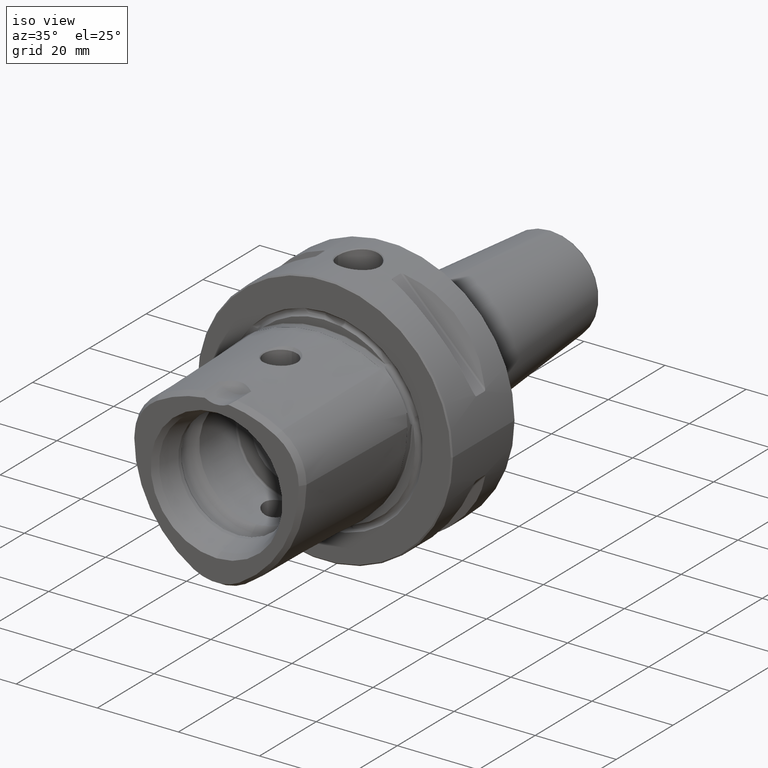
[diagram: clean part render]
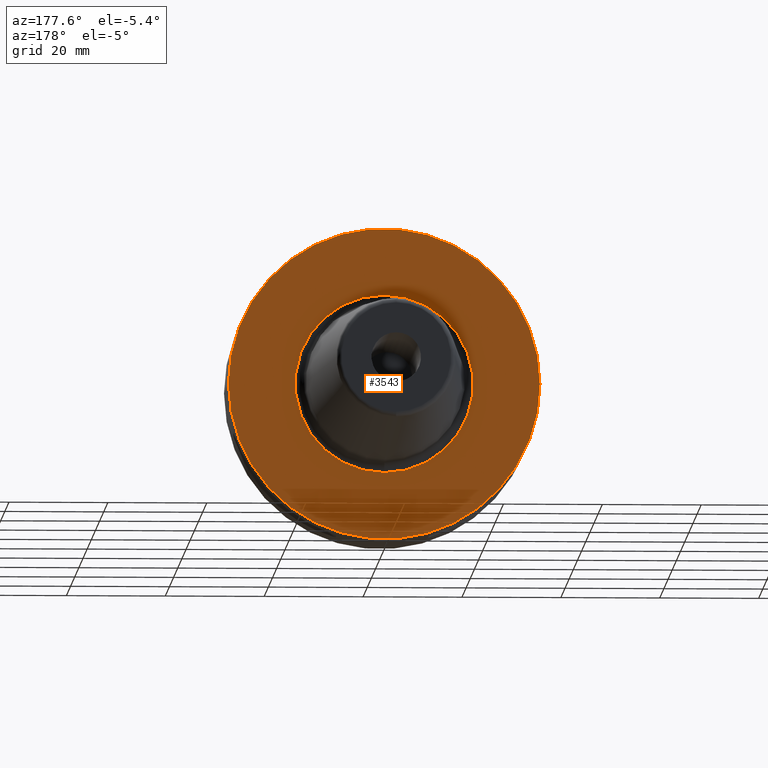
[diagram: tour spotlight — one face highlighted and labeled with its STEP entity id]
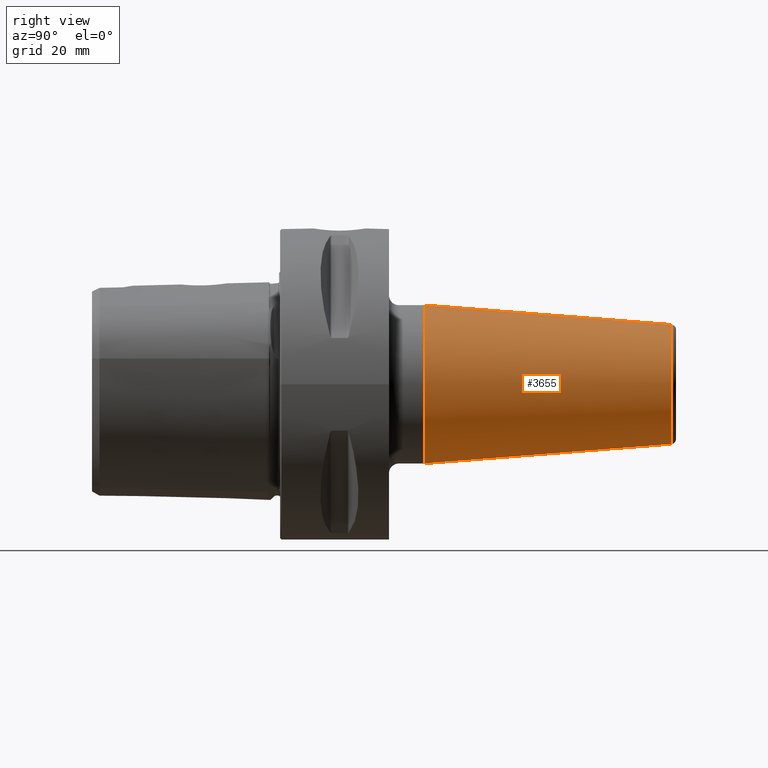
[diagram: tour spotlight — one face highlighted and labeled with its STEP entity id]
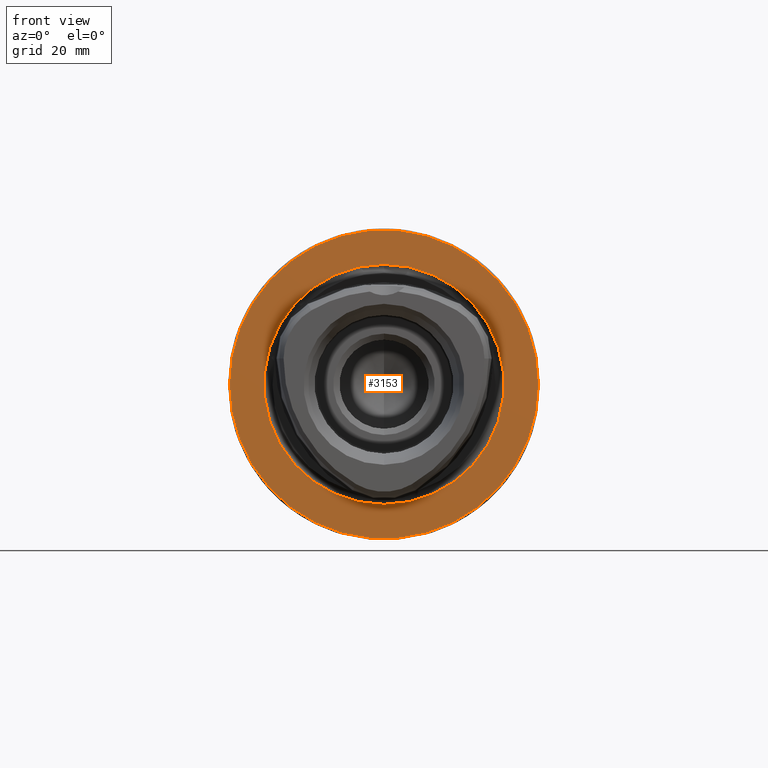
[diagram: tour spotlight — one face highlighted and labeled with its STEP entity id]
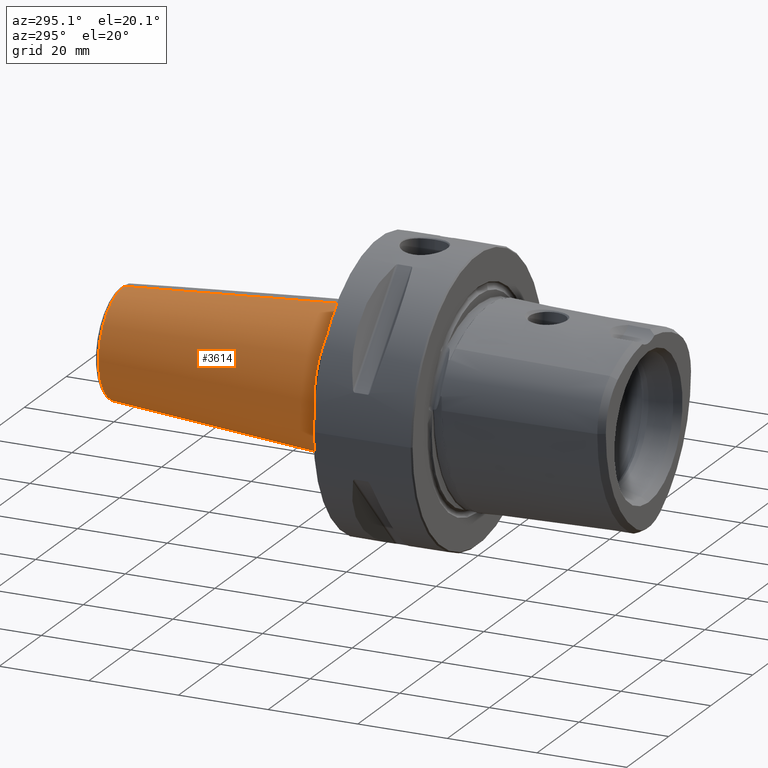
[diagram: tour spotlight — one face highlighted and labeled with its STEP entity id]
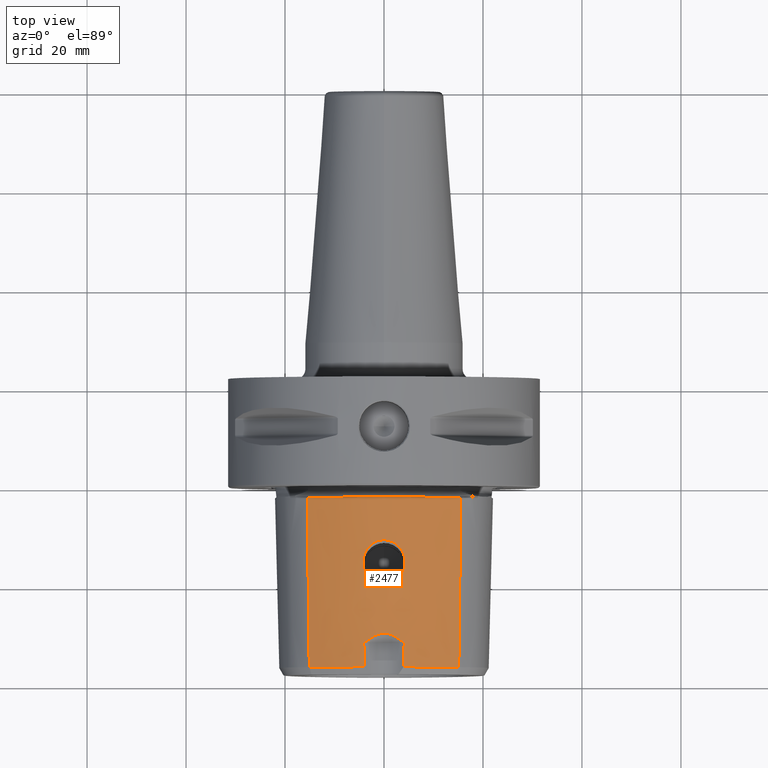
[diagram: tour spotlight — one face highlighted and labeled with its STEP entity id]
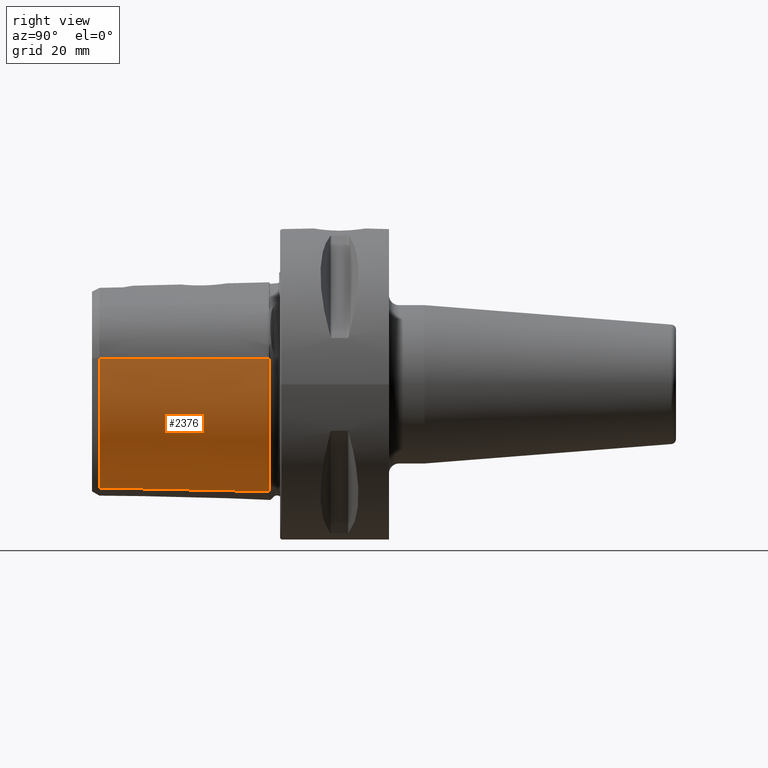
[diagram: tour spotlight — one face highlighted and labeled with its STEP entity id]
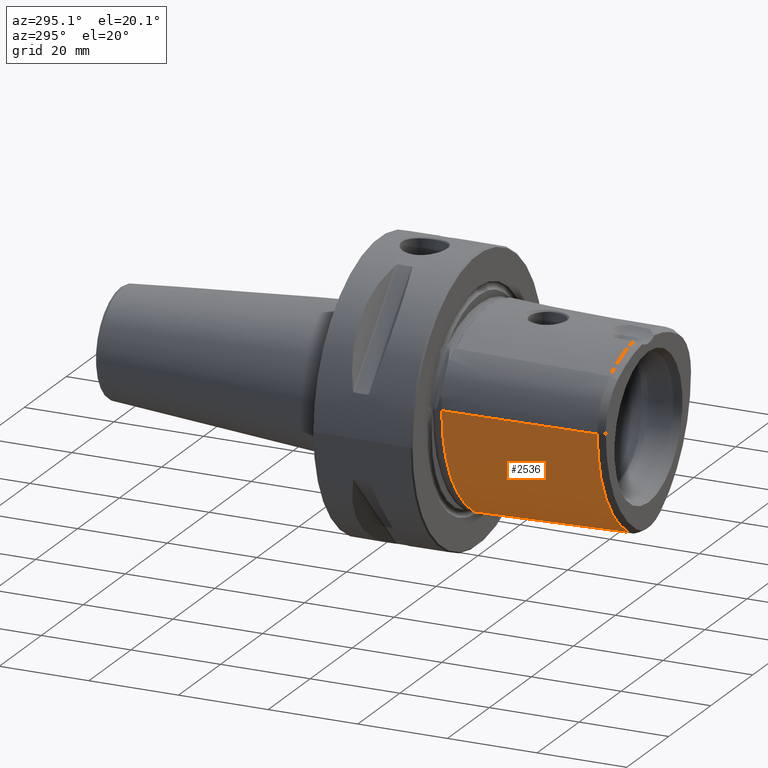
[diagram: tour spotlight — one face highlighted and labeled with its STEP entity id]
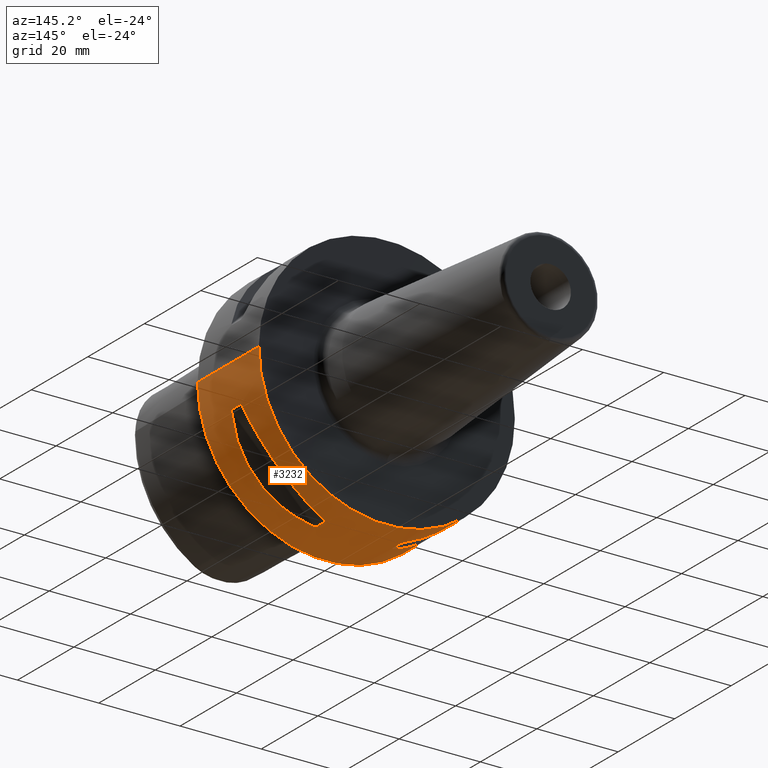
[diagram: tour spotlight — one face highlighted and labeled with its STEP entity id]
A machine part: a face-by-face anatomy tour. The part has 120 B-rep faces; the first image is the clean iso view, then the 8 largest visible faces are spotlighted one at a time (largest first), each with its STEP entity span.

Face 1 — auxiliary view, entity #3543. In plain terms, the highlighted planar face has unit normal (0, -1, 0).
Definition (entity closure, byte-faithful):
#1258=CARTESIAN_POINT('',(0.E0,2.2E1,0.E0));
#1259=DIRECTION('',(0.E0,-1.E0,0.E0));
#1260=DIRECTION('',(-1.E0,0.E0,0.E0));
#1261=AXIS2_PLACEMENT_3D('',#1258,#1259,#1260);
#1432=CARTESIAN_POINT('',(0.E0,2.2E1,0.E0));
#1433=DIRECTION('',(0.E0,1.E0,0.E0));
#1434=DIRECTION('',(-1.E0,0.E0,0.E0));
#1435=AXIS2_PLACEMENT_3D('',#1432,#1433,#1434);
#1589=CARTESIAN_POINT('',(0.E0,2.2E1,0.E0));
#1590=DIRECTION('',(0.E0,1.E0,0.E0));
#1591=DIRECTION('',(0.E0,0.E0,-1.E0));
#1592=AXIS2_PLACEMENT_3D('',#1589,#1590,#1591);
#1594=CARTESIAN_POINT('',(0.E0,2.2E1,0.E0));
#1595=DIRECTION('',(0.E0,1.E0,0.E0));
#1596=DIRECTION('',(0.E0,0.E0,1.E0));
#1597=AXIS2_PLACEMENT_3D('',#1594,#1595,#1596);
#1826=CARTESIAN_POINT('',(-3.15E1,2.2E1,0.E0));
#1827=CARTESIAN_POINT('',(3.15E1,2.2E1,0.E0));
#1828=VERTEX_POINT('',#1826);
#1829=VERTEX_POINT('',#1827);
#2102=CARTESIAN_POINT('',(0.E0,2.2E1,-1.8E1));
#2103=CARTESIAN_POINT('',(0.E0,2.2E1,1.8E1));
#2104=VERTEX_POINT('',#2102);
#2105=VERTEX_POINT('',#2103);
#3528=CARTESIAN_POINT('',(0.E0,2.2E1,0.E0));
#3529=DIRECTION('',(0.E0,-1.E0,0.E0));
#3530=DIRECTION('',(-1.E0,0.E0,0.E0));
#3531=AXIS2_PLACEMENT_3D('',#3528,#3529,#3530);
#3532=PLANE('',#3531);
#3533=ORIENTED_EDGE('',*,*,#3360,.F.);
#3534=ORIENTED_EDGE('',*,*,#3190,.T.);
#3535=EDGE_LOOP('',(#3533,#3534));
#3536=FACE_OUTER_BOUND('',#3535,.F.);
#3538=ORIENTED_EDGE('',*,*,#3537,.T.);
#3540=ORIENTED_EDGE('',*,*,#3539,.T.);
#3541=EDGE_LOOP('',(#3538,#3540));
#3542=FACE_BOUND('',#3541,.F.);
#3543=ADVANCED_FACE('',(#3536,#3542),#3532,.F.);
#1262=CIRCLE('',#1261,3.15E1);
#1436=CIRCLE('',#1435,3.15E1);
#1593=CIRCLE('',#1592,1.8E1);
#1598=CIRCLE('',#1597,1.8E1);
#3190=EDGE_CURVE('',#1828,#1829,#1262,.T.);
#3360=EDGE_CURVE('',#1828,#1829,#1436,.T.);
#3537=EDGE_CURVE('',#2104,#2105,#1593,.T.);
#3539=EDGE_CURVE('',#2105,#2104,#1598,.T.);

Face 2 — right view, entity #3655. In plain terms, the highlighted conical surface has half-angle 4.5 deg.
Definition (entity closure, byte-faithful):
#1614=CARTESIAN_POINT('',(0.E0,2.917518105530E1,0.E0));
#1615=DIRECTION('',(0.E0,1.E0,0.E0));
#1616=DIRECTION('',(0.E0,0.E0,1.E0));
#1617=AXIS2_PLACEMENT_3D('',#1614,#1615,#1616);
#1642=DIRECTION('',(1.779252310189E-12,-9.969173337331E-1,7.845909572785E-2));
#1643=VECTOR('',#1642,5.005758888109E1);
#1644=CARTESIAN_POINT('',(-8.906312122431E-11,7.907845909575E1,
1.207252684207E1));
#1645=LINE('',#1644,#1643);
#1646=DIRECTION('',(-1.779244649167E-12,-9.969173337331E-1,-7.845909572785E-2));
#1647=VECTOR('',#1646,5.005758888109E1);
#1648=CARTESIAN_POINT('',(8.906273773199E-11,7.907845909575E1,
-1.207252684207E1));
#1649=LINE('',#1648,#1647);
#1660=CARTESIAN_POINT('',(0.E0,7.907845909573E1,0.E0));
#1661=DIRECTION('',(0.E0,-1.E0,0.E0));
#1662=DIRECTION('',(0.E0,0.E0,-1.E0));
#1663=AXIS2_PLACEMENT_3D('',#1660,#1661,#1662);
#2090=CARTESIAN_POINT('',(0.E0,7.907845909573E1,-1.207252684207E1));
#2091=CARTESIAN_POINT('',(0.E0,7.907845909573E1,1.207252684207E1));
#2092=VERTEX_POINT('',#2090);
#2093=VERTEX_POINT('',#2091);
#2098=CARTESIAN_POINT('',(0.E0,2.917518105530E1,1.6E1));
#2099=CARTESIAN_POINT('',(0.E0,2.917518105530E1,-1.6E1));
#2100=VERTEX_POINT('',#2098);
#2101=VERTEX_POINT('',#2099);
#3644=CARTESIAN_POINT('',(0.E0,5.412682007551E1,0.E0));
#3645=DIRECTION('',(0.E0,-1.E0,0.E0));
#3646=DIRECTION('',(0.E0,0.E0,1.E0));
#3647=AXIS2_PLACEMENT_3D('',#3644,#3645,#3646);
#3648=CONICAL_SURFACE('',#3647,1.403626342104E1,4.5E0);
#3649=ORIENTED_EDGE('',*,*,#3635,.F.);
#3650=ORIENTED_EDGE('',*,*,#3610,.T.);
#3651=ORIENTED_EDGE('',*,*,#3580,.F.);
#3652=ORIENTED_EDGE('',*,*,#3607,.F.);
#3653=EDGE_LOOP('',(#3649,#3650,#3651,#3652));
#3654=FACE_OUTER_BOUND('',#3653,.F.);
#3655=ADVANCED_FACE('',(#3654),#3648,.T.);
#1618=CIRCLE('',#1617,1.6E1);
#1664=CIRCLE('',#1663,1.207252684207E1);
#3580=EDGE_CURVE('',#2100,#2101,#1618,.T.);
#3607=EDGE_CURVE('',#2093,#2100,#1645,.T.);
#3610=EDGE_CURVE('',#2092,#2101,#1649,.T.);
#3635=EDGE_CURVE('',#2092,#2093,#1664,.T.);

Face 3 — front view, entity #3153. In plain terms, the highlighted planar face has unit normal (0, -1, 0).
Definition (entity closure, byte-faithful):
#1177=CARTESIAN_POINT('',(-1.936228954946E-13,4.010886343053E-7,
-3.508304757815E-13));
#1178=DIRECTION('',(0.E0,-1.E0,0.E0));
#1179=DIRECTION('',(1.E0,0.E0,1.092294200152E-14));
#1180=AXIS2_PLACEMENT_3D('',#1177,#1178,#1179);
#1182=CARTESIAN_POINT('',(2.540190280342E-13,4.010885525929E-7,
-5.062616992291E-14));
#1183=DIRECTION('',(0.E0,-1.E0,0.E0));
#1184=DIRECTION('',(-1.E0,0.E0,0.E0));
#1185=AXIS2_PLACEMENT_3D('',#1182,#1183,#1184);
#1187=CARTESIAN_POINT('',(0.E0,0.E0,0.E0));
#1188=DIRECTION('',(0.E0,-1.E0,0.E0));
#1189=DIRECTION('',(0.E0,0.E0,-1.E0));
#1190=AXIS2_PLACEMENT_3D('',#1187,#1188,#1189);
#1192=CARTESIAN_POINT('',(0.E0,0.E0,0.E0));
#1193=DIRECTION('',(0.E0,-1.E0,0.E0));
#1194=DIRECTION('',(0.E0,0.E0,1.E0));
#1195=AXIS2_PLACEMENT_3D('',#1192,#1193,#1194);
#1830=CARTESIAN_POINT('',(3.119999665778E1,4.010886343053E-7,
-1.003472184084E-14));
#1831=CARTESIAN_POINT('',(-3.119999665778E1,4.010886343053E-7,0.E0));
#1832=VERTEX_POINT('',#1830);
#1833=VERTEX_POINT('',#1831);
#1838=CARTESIAN_POINT('',(0.E0,0.E0,-2.425E1));
#1839=CARTESIAN_POINT('',(0.E0,0.E0,2.425E1));
#1840=VERTEX_POINT('',#1838);
#1841=VERTEX_POINT('',#1839);
#3138=CARTESIAN_POINT('',(0.E0,0.E0,0.E0));
#3139=DIRECTION('',(0.E0,-1.E0,0.E0));
#3140=DIRECTION('',(-1.E0,0.E0,0.E0));
#3141=AXIS2_PLACEMENT_3D('',#3138,#3139,#3140);
#3142=PLANE('',#3141);
#3144=ORIENTED_EDGE('',*,*,#3143,.F.);
#3146=ORIENTED_EDGE('',*,*,#3145,.F.);
#3147=EDGE_LOOP('',(#3144,#3146));
#3148=FACE_OUTER_BOUND('',#3147,.F.);
#3149=ORIENTED_EDGE('',*,*,#2301,.T.);
#3150=ORIENTED_EDGE('',*,*,#2166,.T.);
#3151=EDGE_LOOP('',(#3149,#3150));
#3152=FACE_BOUND('',#3151,.F.);
#3153=ADVANCED_FACE('',(#3148,#3152),#3142,.T.);
#1181=CIRCLE('',#1180,3.119999665778E1);
#1186=CIRCLE('',#1185,3.119999665778E1);
#1191=CIRCLE('',#1190,2.425E1);
#1196=CIRCLE('',#1195,2.425E1);
#2166=EDGE_CURVE('',#1841,#1840,#1196,.T.);
#2301=EDGE_CURVE('',#1840,#1841,#1191,.T.);
#3143=EDGE_CURVE('',#1832,#1833,#1181,.T.);
#3145=EDGE_CURVE('',#1833,#1832,#1186,.T.);

Face 4 — auxiliary view, entity #3614. In plain terms, the highlighted conical surface has half-angle 4.5 deg.
Definition (entity closure, byte-faithful):
#1628=CARTESIAN_POINT('',(0.E0,2.917518105530E1,0.E0));
#1629=DIRECTION('',(0.E0,-1.E0,0.E0));
#1630=DIRECTION('',(0.E0,0.E0,1.E0));
#1631=AXIS2_PLACEMENT_3D('',#1628,#1629,#1630);
#1637=CARTESIAN_POINT('',(0.E0,7.907845909573E1,0.E0));
#1638=DIRECTION('',(0.E0,-1.E0,0.E0));
#1639=DIRECTION('',(0.E0,0.E0,1.E0));
#1640=AXIS2_PLACEMENT_3D('',#1637,#1638,#1639);
#1642=DIRECTION('',(1.779252310189E-12,-9.969173337331E-1,7.845909572785E-2));
#1643=VECTOR('',#1642,5.005758888109E1);
#1644=CARTESIAN_POINT('',(-8.906312122431E-11,7.907845909575E1,
1.207252684207E1));
#1645=LINE('',#1644,#1643);
#1646=DIRECTION('',(-1.779244649167E-12,-9.969173337331E-1,-7.845909572785E-2));
#1647=VECTOR('',#1646,5.005758888109E1);
#1648=CARTESIAN_POINT('',(8.906273773199E-11,7.907845909575E1,
-1.207252684207E1));
#1649=LINE('',#1648,#1647);
#2090=CARTESIAN_POINT('',(0.E0,7.907845909573E1,-1.207252684207E1));
#2091=CARTESIAN_POINT('',(0.E0,7.907845909573E1,1.207252684207E1));
#2092=VERTEX_POINT('',#2090);
#2093=VERTEX_POINT('',#2091);
#2098=CARTESIAN_POINT('',(0.E0,2.917518105530E1,1.6E1));
#2099=CARTESIAN_POINT('',(0.E0,2.917518105530E1,-1.6E1));
#2100=VERTEX_POINT('',#2098);
#2101=VERTEX_POINT('',#2099);
#3600=CARTESIAN_POINT('',(0.E0,5.412682007551E1,0.E0));
#3601=DIRECTION('',(0.E0,-1.E0,0.E0));
#3602=DIRECTION('',(0.E0,0.E0,1.E0));
#3603=AXIS2_PLACEMENT_3D('',#3600,#3601,#3602);
#3604=CONICAL_SURFACE('',#3603,1.403626342104E1,4.5E0);
#3606=ORIENTED_EDGE('',*,*,#3605,.F.);
#3608=ORIENTED_EDGE('',*,*,#3607,.T.);
#3609=ORIENTED_EDGE('',*,*,#3594,.T.);
#3611=ORIENTED_EDGE('',*,*,#3610,.F.);
#3612=EDGE_LOOP('',(#3606,#3608,#3609,#3611));
#3613=FACE_OUTER_BOUND('',#3612,.F.);
#3614=ADVANCED_FACE('',(#3613),#3604,.T.);
#1632=CIRCLE('',#1631,1.6E1);
#1641=CIRCLE('',#1640,1.207252684207E1);
#3594=EDGE_CURVE('',#2100,#2101,#1632,.T.);
#3605=EDGE_CURVE('',#2093,#2092,#1641,.T.);
#3607=EDGE_CURVE('',#2093,#2100,#1645,.T.);
#3610=EDGE_CURVE('',#2092,#2101,#1649,.T.);

Face 5 — top view, entity #2477. In plain terms, the highlighted conical surface has half-angle 1.439 deg.
Definition (entity closure, byte-faithful):
#459=CARTESIAN_POINT('',(-4.083581150789E0,-3.165E1,1.960405129865E1));
#460=CARTESIAN_POINT('',(-3.786603305999E0,-3.141392824840E1,1.965038882310E1));
#461=CARTESIAN_POINT('',(-3.215300170499E0,-3.098405756594E1,1.972995818803E1));
#462=CARTESIAN_POINT('',(-2.414951543558E0,-3.046604903620E1,1.981708786388E1));
#463=CARTESIAN_POINT('',(-1.667299158545E0,-3.008189499428E1,1.987664357015E1));
#464=CARTESIAN_POINT('',(-9.779123187995E-1,-2.983639341263E1,
1.991247229588E1));
#465=CARTESIAN_POINT('',(-3.230953523104E-1,-2.971626630015E1,
1.992938378168E1));
#466=CARTESIAN_POINT('',(3.248114485159E-1,-2.971648991488E1,1.992935226811E1));
#467=CARTESIAN_POINT('',(9.784964449963E-1,-2.983657045551E1,1.991244747688E1));
#468=CARTESIAN_POINT('',(1.668157414189E0,-3.008229924617E1,1.987658159161E1));
#469=CARTESIAN_POINT('',(2.414466929354E0,-3.046580203239E1,1.981712626593E1));
#470=CARTESIAN_POINT('',(3.215098231671E0,-3.098389389643E1,1.972998807999E1));
#471=CARTESIAN_POINT('',(3.786488416677E0,-3.141383692130E1,1.965040674931E1));
#472=CARTESIAN_POINT('',(4.083581150789E0,-3.165E1,1.960405129865E1));
#479=CARTESIAN_POINT('',(0.E0,-2.199936910936E0,-1.044974226119E1));
#480=DIRECTION('',(0.E0,1.E0,0.E0));
#481=DIRECTION('',(-5.E-1,0.E0,8.660254037844E-1));
#482=AXIS2_PLACEMENT_3D('',#479,#480,#481);
#484=CARTESIAN_POINT('',(0.E0,-3.65E1,-1.044974226119E1));
#485=DIRECTION('',(0.E0,1.E0,0.E0));
#486=DIRECTION('',(1.312631431489E-1,0.E0,9.913475612774E-1));
#487=AXIS2_PLACEMENT_3D('',#484,#485,#486);
#489=CARTESIAN_POINT('',(4.083581150789E0,-3.165E1,1.960405129865E1));
#490=CARTESIAN_POINT('',(4.070457658553E0,-3.220115328868E1,1.959186033620E1));
#491=CARTESIAN_POINT('',(4.044187665875E0,-3.329528064835E1,1.956767602542E1));
#492=CARTESIAN_POINT('',(4.004731201004E0,-3.491169764686E1,1.953199539320E1));
#493=CARTESIAN_POINT('',(3.978388771178E0,-3.597326597985E1,1.950859363950E1));
#494=CARTESIAN_POINT('',(3.965210897225E0,-3.65E1,1.949698961354E1));
#496=CARTESIAN_POINT('',(-3.965210897225E0,-3.65E1,1.949698961354E1));
#497=CARTESIAN_POINT('',(-3.978388761738E0,-3.597326635717E1,1.950859363119E1));
#498=CARTESIAN_POINT('',(-4.004731162626E0,-3.491169902479E1,1.953199536313E1));
#499=CARTESIAN_POINT('',(-4.044186600750E0,-3.329532457181E1,1.956767505534E1));
#500=CARTESIAN_POINT('',(-4.070457205245E0,-3.220117232647E1,1.959185991511E1));
#501=CARTESIAN_POINT('',(-4.083581150789E0,-3.165E1,1.960405129865E1));
#503=CARTESIAN_POINT('',(0.E0,-3.65E1,-1.044974226119E1));
#504=DIRECTION('',(0.E0,1.E0,0.E0));
#505=DIRECTION('',(-5.E-1,0.E0,8.660254037844E-1));
#506=AXIS2_PLACEMENT_3D('',#503,#504,#505);
#508=DIRECTION('',(-1.255777780594E-2,9.996845546803E-1,2.175070919006E-2));
#509=VECTOR('',#508,3.431088629756E1);
#510=CARTESIAN_POINT('',(-1.510405282893E1,-3.65E1,1.571124463872E1));
#511=LINE('',#510,#509);
#512=CARTESIAN_POINT('',(0.E0,-1.995E1,2.017415700220E1));
#513=CARTESIAN_POINT('',(-2.725424328975E-1,-1.995E1,2.017415700220E1));
#514=CARTESIAN_POINT('',(-8.132404092254E-1,-1.989753423613E1,
2.016856153878E1));
#515=CARTESIAN_POINT('',(-1.662957950639E0,-1.962284713130E1,2.014074697208E1));
#516=CARTESIAN_POINT('',(-2.395208791334E0,-1.919589600884E1,2.010185149601E1));
#517=CARTESIAN_POINT('',(-3.032922441236E0,-1.863585029331E1,2.005867739478E1));
#518=CARTESIAN_POINT('',(-3.562565317410E0,-1.794952924799E1,2.001801254967E1));
#519=CARTESIAN_POINT('',(-3.959966685478E0,-1.716155458813E1,1.998824587620E1));
#520=CARTESIAN_POINT('',(-4.204556050823E0,-1.631387772585E1,1.997649586575E1));
#521=CARTESIAN_POINT('',(-4.292352230396E0,-1.543463421641E1,1.998639598864E1));
#522=CARTESIAN_POINT('',(-4.219289334341E0,-1.454722968711E1,2.001924769382E1));
#523=CARTESIAN_POINT('',(-3.986305134285E0,-1.368645832467E1,2.007285193729E1));
#524=CARTESIAN_POINT('',(-3.590346379051E0,-1.287262913861E1,2.014320119007E1));
#525=CARTESIAN_POINT('',(-3.059005098083E0,-1.216831476500E1,2.021940181609E1));
#526=CARTESIAN_POINT('',(-2.416833745207E0,-1.159361672319E1,2.029177397909E1));
#527=CARTESIAN_POINT('',(-1.681630794178E0,-1.115796574738E1,2.035269178197E1));
#528=CARTESIAN_POINT('',(-8.315755274133E-1,-1.087668896500E1,
2.039482322513E1));
#529=CARTESIAN_POINT('',(-2.796620008688E-1,-1.082063866678E1,
2.040351833542E1));
#530=CARTESIAN_POINT('',(0.E0,-1.082063866678E1,2.040351833542E1));
#532=CARTESIAN_POINT('',(0.E0,-1.082063866678E1,2.040351833542E1));
#533=CARTESIAN_POINT('',(2.843296909629E-1,-1.082063866678E1,2.040351833542E1));
#534=CARTESIAN_POINT('',(8.445256980095E-1,-1.087842922587E1,2.039454908296E1));
#535=CARTESIAN_POINT('',(1.706633303138E0,-1.116863253715E1,2.035111951667E1));
#536=CARTESIAN_POINT('',(2.444988807217E0,-1.161399303930E1,2.028903597532E1));
#537=CARTESIAN_POINT('',(3.087348825473E0,-1.219864382331E1,2.021579867997E1));
#538=CARTESIAN_POINT('',(3.618128220023E0,-1.291733575607E1,2.013878079388E1));
#539=CARTESIAN_POINT('',(4.007699076920E0,-1.374366143356E1,2.006856764823E1));
#540=CARTESIAN_POINT('',(4.230013797050E0,-1.461119782082E1,2.001611842963E1));
#541=CARTESIAN_POINT('',(4.291335469586E0,-1.549661210385E1,1.998496843062E1));
#542=CARTESIAN_POINT('',(4.192340995278E0,-1.637459992393E1,1.997666158343E1));
#543=CARTESIAN_POINT('',(3.939061542998E0,-1.721247957007E1,1.998969378964E1));
#544=CARTESIAN_POINT('',(3.538365077102E0,-1.798605157740E1,2.001990669315E1));
#545=CARTESIAN_POINT('',(3.011745187646E0,-1.865732813642E1,2.006021178169E1));
#546=CARTESIAN_POINT('',(2.376223335180E0,-1.920908960970E1,2.010298957091E1));
#547=CARTESIAN_POINT('',(1.647469862801E0,-1.962908790700E1,2.014136759567E1));
#548=CARTESIAN_POINT('',(8.068347571064E-1,-1.989820396916E1,2.016863583202E1));
#549=CARTESIAN_POINT('',(2.703992812782E-1,-1.995E1,2.017415700220E1));
#550=CARTESIAN_POINT('',(0.E0,-1.995E1,2.017415700220E1));
#634=CARTESIAN_POINT('',(-1.553492131538E1,-2.199936910936E0,1.645753074864E1));
#742=DIRECTION('',(1.255777780594E-2,9.996845546803E-1,2.175070919006E-2));
#743=VECTOR('',#742,3.431088629756E1);
#744=CARTESIAN_POINT('',(1.510405282893E1,-3.65E1,1.571124463872E1));
#745=LINE('',#744,#743);
#1856=VERTEX_POINT('',#512);
#1857=VERTEX_POINT('',#530);
#1862=VERTEX_POINT('',#496);
#1863=VERTEX_POINT('',#501);
#1864=VERTEX_POINT('',#489);
#1865=VERTEX_POINT('',#494);
#1949=VERTEX_POINT('',#634);
#1950=CARTESIAN_POINT('',(1.553492131538E1,-2.199936910936E0,1.645753074864E1));
#1951=VERTEX_POINT('',#1950);
#2044=CARTESIAN_POINT('',(-1.510405282893E1,-3.65E1,1.571124463872E1));
#2045=VERTEX_POINT('',#2044);
#2046=CARTESIAN_POINT('',(1.510405282893E1,-3.65E1,1.571124463872E1));
#2048=VERTEX_POINT('',#2046);
#2451=CARTESIAN_POINT('',(0.E0,-1.934996845547E1,-1.044974226119E1));
#2452=DIRECTION('',(0.E0,1.E0,0.E0));
#2453=DIRECTION('',(1.E0,0.E0,0.E0));
#2454=AXIS2_PLACEMENT_3D('',#2451,#2452,#2453);
#2455=CONICAL_SURFACE('',#2454,3.063897414432E1,1.439166666E0);
#2457=ORIENTED_EDGE('',*,*,#2456,.T.);
#2459=ORIENTED_EDGE('',*,*,#2458,.F.);
#2461=ORIENTED_EDGE('',*,*,#2460,.F.);
#2462=ORIENTED_EDGE('',*,*,#2428,.F.);
#2463=ORIENTED_EDGE('',*,*,#2445,.F.);
#2464=ORIENTED_EDGE('',*,*,#2435,.F.);
#2466=ORIENTED_EDGE('',*,*,#2465,.F.);
#2468=ORIENTED_EDGE('',*,*,#2467,.T.);
#2469=EDGE_LOOP('',(#2457,#2459,#2461,#2462,#2463,#2464,#2466,#2468));
#2470=FACE_OUTER_BOUND('',#2469,.F.);
#2472=ORIENTED_EDGE('',*,*,#2471,.F.);
#2474=ORIENTED_EDGE('',*,*,#2473,.F.);
#2475=EDGE_LOOP('',(#2472,#2474));
#2476=FACE_BOUND('',#2475,.F.);
#2477=ADVANCED_FACE('',(#2470,#2476),#2455,.T.);
#473=B_SPLINE_CURVE_WITH_KNOTS('',3,(#459,#460,#461,#462,#463,#464,#465,#466,
#467,#468,#469,#470,#471,#472),.UNSPECIFIED.,.F.,.F.,(4,1,1,1,1,1,1,1,1,1,1,4),(
0.E0,9.090909090909E-2,1.818181818182E-1,2.727272727273E-1,3.636363636364E-1,
4.545454545455E-1,5.454545454545E-1,6.363636363636E-1,7.272727272727E-1,
8.181818181818E-1,9.090909090909E-1,1.E0),.UNSPECIFIED.);
#483=CIRCLE('',#482,3.106984263077E1);
#488=CIRCLE('',#487,3.020810565787E1);
#495=B_SPLINE_CURVE_WITH_KNOTS('',3,(#489,#490,#491,#492,#493,#494),
.UNSPECIFIED.,.F.,.F.,(4,1,1,4),(0.E0,3.333333333333E-1,6.666666666667E-1,1.E0),
.UNSPECIFIED.);
#502=B_SPLINE_CURVE_WITH_KNOTS('',3,(#496,#497,#498,#499,#500,#501),
.UNSPECIFIED.,.F.,.F.,(4,1,1,4),(0.E0,3.333333333333E-1,6.666666666667E-1,1.E0),
.UNSPECIFIED.);
#507=CIRCLE('',#506,3.020810565787E1);
#531=B_SPLINE_CURVE_WITH_KNOTS('',3,(#512,#513,#514,#515,#516,#517,#518,#519,
#520,#521,#522,#523,#524,#525,#526,#527,#528,#529,#530),.UNSPECIFIED.,.F.,.F.,
(4,1,1,1,1,1,1,1,1,1,1,1,1,1,1,1,4),(0.E0,6.25E-2,1.25E-1,1.875E-1,2.5E-1,
3.125E-1,3.75E-1,4.375E-1,5.E-1,5.625E-1,6.25E-1,6.875E-1,7.5E-1,8.125E-1,
8.75E-1,9.375E-1,1.E0),.UNSPECIFIED.);
#551=B_SPLINE_CURVE_WITH_KNOTS('',3,(#532,#533,#534,#535,#536,#537,#538,#539,
#540,#541,#542,#543,#544,#545,#546,#547,#548,#549,#550),.UNSPECIFIED.,.F.,.F.,
(4,1,1,1,1,1,1,1,1,1,1,1,1,1,1,1,4),(0.E0,6.25E-2,1.25E-1,1.875E-1,2.5E-1,
3.125E-1,3.75E-1,4.375E-1,5.E-1,5.625E-1,6.25E-1,6.875E-1,7.5E-1,8.125E-1,
8.75E-1,9.375E-1,1.E0),.UNSPECIFIED.);
#2428=EDGE_CURVE('',#1864,#1865,#495,.T.);
#2435=EDGE_CURVE('',#1862,#1863,#502,.T.);
#2445=EDGE_CURVE('',#1863,#1864,#473,.T.);
#2456=EDGE_CURVE('',#1949,#1951,#483,.T.);
#2458=EDGE_CURVE('',#2048,#1951,#745,.T.);
#2460=EDGE_CURVE('',#1865,#2048,#488,.T.);
#2465=EDGE_CURVE('',#2045,#1862,#507,.T.);
#2467=EDGE_CURVE('',#2045,#1949,#511,.T.);
#2471=EDGE_CURVE('',#1856,#1857,#531,.T.);
#2473=EDGE_CURVE('',#1857,#1856,#551,.T.);

Face 6 — right view, entity #2376. In plain terms, the highlighted conical surface has half-angle 1.439 deg.
Definition (entity closure, byte-faithful):
#316=CARTESIAN_POINT('',(6.485179054191E0,-2.199936910936E0,-2.168240187923E1));
#392=CARTESIAN_POINT('',(-9.049742261193E0,-2.199936910936E0,5.224871130596E0));
#393=DIRECTION('',(0.E0,1.E0,0.E0));
#394=DIRECTION('',(1.E0,0.E0,1.089146095547E-14));
#395=AXIS2_PLACEMENT_3D('',#392,#393,#394);
#397=DIRECTION('',(-1.255777780595E-2,-9.996845546803E-1,2.175070919006E-2));
#398=VECTOR('',#397,3.431088629756E1);
#399=CARTESIAN_POINT('',(6.485179054191E0,-2.199936910936E0,-2.168240187923E1));
#400=LINE('',#399,#398);
#401=CARTESIAN_POINT('',(-9.049742261193E0,-3.65E1,5.224871130596E0));
#402=DIRECTION('',(0.E0,1.E0,0.E0));
#403=DIRECTION('',(1.E0,0.E0,1.090813828053E-14));
#404=AXIS2_PLACEMENT_3D('',#401,#402,#403);
#406=DIRECTION('',(2.511555561190E-2,9.996845546803E-1,-1.511754003107E-14));
#407=VECTOR('',#406,3.431088629756E1);
#408=CARTESIAN_POINT('',(2.115836339667E1,-3.65E1,5.224871130597E0));
#409=LINE('',#408,#407);
#735=CARTESIAN_POINT('',(2.202010036957E1,-2.199936910936E0,5.224871130596E0));
#1978=VERTEX_POINT('',#316);
#1981=VERTEX_POINT('',#735);
#2047=CARTESIAN_POINT('',(2.115836339667E1,-3.65E1,5.224871130597E0));
#2049=VERTEX_POINT('',#2047);
#2050=CARTESIAN_POINT('',(6.054310567741E0,-3.65E1,-2.093611576932E1));
#2051=VERTEX_POINT('',#2050);
#2363=CARTESIAN_POINT('',(-9.049742261193E0,-1.934996845547E1,
5.224871130596E0));
#2364=DIRECTION('',(0.E0,1.E0,0.E0));
#2365=DIRECTION('',(1.E0,0.E0,0.E0));
#2366=AXIS2_PLACEMENT_3D('',#2363,#2364,#2365);
#2367=CONICAL_SURFACE('',#2366,3.063897414432E1,1.439166666E0);
#2368=ORIENTED_EDGE('',*,*,#2355,.T.);
#2369=ORIENTED_EDGE('',*,*,#2344,.T.);
#2371=ORIENTED_EDGE('',*,*,#2370,.F.);
#2373=ORIENTED_EDGE('',*,*,#2372,.T.);
#2374=EDGE_LOOP('',(#2368,#2369,#2371,#2373));
#2375=FACE_OUTER_BOUND('',#2374,.F.);
#2376=ADVANCED_FACE('',(#2375),#2367,.T.);
#396=CIRCLE('',#395,3.106984263077E1);
#405=CIRCLE('',#404,3.020810565787E1);
#2344=EDGE_CURVE('',#1978,#2051,#400,.T.);
#2355=EDGE_CURVE('',#1981,#1978,#396,.T.);
#2370=EDGE_CURVE('',#2049,#2051,#405,.T.);
#2372=EDGE_CURVE('',#2049,#1981,#409,.T.);

Face 7 — auxiliary view, entity #2536. In plain terms, the highlighted conical surface has half-angle 1.439 deg.
Definition (entity closure, byte-faithful):
#390=CARTESIAN_POINT('',(-6.485179054191E0,-2.199936910936E0,
-2.168240187923E1));
#641=DIRECTION('',(-2.511555561190E-2,9.996845546803E-1,0.E0));
#642=VECTOR('',#641,3.431088629756E1);
#643=CARTESIAN_POINT('',(-2.115836339667E1,-3.65E1,5.224871130596E0));
#644=LINE('',#643,#642);
#645=CARTESIAN_POINT('',(9.049742261193E0,-2.199936910936E0,5.224871130597E0));
#646=DIRECTION('',(0.E0,1.E0,0.E0));
#647=DIRECTION('',(-5.E-1,0.E0,-8.660254037844E-1));
#648=AXIS2_PLACEMENT_3D('',#645,#646,#647);
#650=CARTESIAN_POINT('',(9.049742261193E0,-3.65E1,5.224871130597E0));
#651=DIRECTION('',(0.E0,1.E0,0.E0));
#652=DIRECTION('',(-5.E-1,0.E0,-8.660254037844E-1));
#653=AXIS2_PLACEMENT_3D('',#650,#651,#652);
#655=DIRECTION('',(-1.255777780596E-2,9.996845546803E-1,-2.175070919006E-2));
#656=VECTOR('',#655,3.431088629756E1);
#657=CARTESIAN_POINT('',(-6.054310567741E0,-3.65E1,-2.093611576932E1));
#658=LINE('',#657,#656);
#1964=VERTEX_POINT('',#390);
#1965=CARTESIAN_POINT('',(-2.202010036957E1,-2.199936910936E0,
5.224871130596E0));
#1966=VERTEX_POINT('',#1965);
#2040=CARTESIAN_POINT('',(-6.054310567741E0,-3.65E1,-2.093611576932E1));
#2041=CARTESIAN_POINT('',(-2.115836339667E1,-3.65E1,5.224871130596E0));
#2042=VERTEX_POINT('',#2040);
#2043=VERTEX_POINT('',#2041);
#2524=CARTESIAN_POINT('',(9.049742261193E0,-1.934996845547E1,5.224871130597E0));
#2525=DIRECTION('',(0.E0,1.E0,0.E0));
#2526=DIRECTION('',(1.E0,0.E0,0.E0));
#2527=AXIS2_PLACEMENT_3D('',#2524,#2525,#2526);
#2528=CONICAL_SURFACE('',#2527,3.063897414432E1,1.439166666E0);
#2529=ORIENTED_EDGE('',*,*,#2519,.T.);
#2530=ORIENTED_EDGE('',*,*,#2506,.F.);
#2532=ORIENTED_EDGE('',*,*,#2531,.F.);
#2533=ORIENTED_EDGE('',*,*,#2340,.T.);
#2534=EDGE_LOOP('',(#2529,#2530,#2532,#2533));
#2535=FACE_OUTER_BOUND('',#2534,.F.);
#2536=ADVANCED_FACE('',(#2535),#2528,.T.);
#649=CIRCLE('',#648,3.106984263077E1);
#654=CIRCLE('',#653,3.020810565787E1);
#2340=EDGE_CURVE('',#2042,#1964,#658,.T.);
#2506=EDGE_CURVE('',#2043,#1966,#644,.T.);
#2519=EDGE_CURVE('',#1964,#1966,#649,.T.);
#2531=EDGE_CURVE('',#2042,#2043,#654,.T.);

Face 8 — auxiliary view, entity #3232. In plain terms, the highlighted cylindrical surface (partial cylindrical patch) has radius 31.5 mm, axis along (0, -1, 0).
Definition (entity closure, byte-faithful):
#1205=DIRECTION('',(0.E0,-1.E0,0.E0));
#1206=VECTOR('',#1205,2.922649730810E0);
#1207=CARTESIAN_POINT('',(-3.008059276032E1,1.346132486541E1,
-9.349221314525E0));
#1208=LINE('',#1207,#1206);
#1209=CARTESIAN_POINT('',(-2.991395484647E1,1.389433756730E1,
-9.869412618966E0));
#1210=CARTESIAN_POINT('',(-2.908518363459E1,1.458150705601E1,
-1.238139844501E1));
#1211=CARTESIAN_POINT('',(-2.691325004580E1,1.553584740593E1,
-1.689097893205E1));
#1212=CARTESIAN_POINT('',(-2.245973816660E1,1.599114523220E1,
-2.245973816660E1));
#1213=CARTESIAN_POINT('',(-1.689097893205E1,1.553584740593E1,
-2.691325004580E1));
#1214=CARTESIAN_POINT('',(-1.238139844501E1,1.458150705601E1,
-2.908518363459E1));
#1215=CARTESIAN_POINT('',(-9.869412618966E0,1.389433756730E1,
-2.991395484647E1));
#1217=DIRECTION('',(0.E0,-1.E0,0.E0));
#1218=VECTOR('',#1217,2.922649730810E0);
#1219=CARTESIAN_POINT('',(-9.349221314525E0,1.346132486541E1,
-3.008059276032E1));
#1220=LINE('',#1219,#1218);
#1221=CARTESIAN_POINT('',(-2.991395484647E1,1.010566243270E1,
-9.869412618966E0));
#1222=CARTESIAN_POINT('',(-2.908518363459E1,9.418492943988E0,
-1.238139844501E1));
#1223=CARTESIAN_POINT('',(-2.691325004580E1,8.464152594070E0,
-1.689097893205E1));
#1224=CARTESIAN_POINT('',(-2.245973816660E1,8.008854767798E0,
-2.245973816660E1));
#1225=CARTESIAN_POINT('',(-1.689097893205E1,8.464152594070E0,
-2.691325004580E1));
#1226=CARTESIAN_POINT('',(-1.238139844501E1,9.418492943988E0,
-2.908518363459E1));
#1227=CARTESIAN_POINT('',(-9.869412618966E0,1.010566243270E1,
-2.991395484647E1));
#1229=CARTESIAN_POINT('',(9.869412618966E0,1.389433756730E1,-2.991395484647E1));
#1230=CARTESIAN_POINT('',(1.238139844501E1,1.458150705601E1,-2.908518363459E1));
#1231=CARTESIAN_POINT('',(1.689097893205E1,1.553584740593E1,-2.691325004580E1));
#1232=CARTESIAN_POINT('',(2.245973816660E1,1.599114523220E1,-2.245973816660E1));
#1233=CARTESIAN_POINT('',(2.691325004580E1,1.553584740593E1,-1.689097893205E1));
#1234=CARTESIAN_POINT('',(2.908518363459E1,1.458150705601E1,-1.238139844501E1));
#1235=CARTESIAN_POINT('',(2.991395484647E1,1.389433756730E1,-9.869412618966E0));
#1237=DIRECTION('',(0.E0,-1.E0,0.E0));
#1238=VECTOR('',#1237,2.922649730810E0);
#1239=CARTESIAN_POINT('',(3.008059276032E1,1.346132486541E1,-9.349221314525E0));
#1240=LINE('',#1239,#1238);
#1241=CARTESIAN_POINT('',(2.991395484647E1,1.010566243270E1,-9.869412618966E0));
#1242=CARTESIAN_POINT('',(2.908518363459E1,9.418492943988E0,-1.238139844501E1));
#1243=CARTESIAN_POINT('',(2.691325004580E1,8.464152594070E0,-1.689097893205E1));
#1244=CARTESIAN_POINT('',(2.245973816660E1,8.008854767798E0,-2.245973816660E1));
#1245=CARTESIAN_POINT('',(1.689097893205E1,8.464152594070E0,-2.691325004580E1));
#1246=CARTESIAN_POINT('',(1.238139844501E1,9.418492943988E0,-2.908518363459E1));
#1247=CARTESIAN_POINT('',(9.869412618966E0,1.010566243270E1,-2.991395484647E1));
#1249=DIRECTION('',(0.E0,-1.E0,0.E0));
#1250=VECTOR('',#1249,2.922649730810E0);
#1251=CARTESIAN_POINT('',(9.349221314525E0,1.346132486541E1,-3.008059276032E1));
#1252=LINE('',#1251,#1250);
#1253=CARTESIAN_POINT('',(0.E0,3.000029778999E-1,0.E0));
#1254=DIRECTION('',(0.E0,-1.E0,0.E0));
#1255=DIRECTION('',(-1.E0,0.E0,0.E0));
#1256=AXIS2_PLACEMENT_3D('',#1253,#1254,#1255);
#1258=CARTESIAN_POINT('',(0.E0,2.2E1,0.E0));
#1259=DIRECTION('',(0.E0,-1.E0,0.E0));
#1260=DIRECTION('',(-1.E0,0.E0,0.E0));
#1261=AXIS2_PLACEMENT_3D('',#1258,#1259,#1260);
#1271=CARTESIAN_POINT('',(-9.349221314525E0,1.346132486541E1,
-3.008059276032E1));
#1272=CARTESIAN_POINT('',(-9.349221314525E0,1.349504795022E1,
-3.008059276032E1));
#1273=CARTESIAN_POINT('',(-9.362833969856E0,1.356093160788E1,
-3.007636824994E1));
#1274=CARTESIAN_POINT('',(-9.423024234347E0,1.365492587026E1,
-3.005758723646E1));
#1275=CARTESIAN_POINT('',(-9.505994515085E0,1.373070359192E1,
-3.003146987333E1));
#1276=CARTESIAN_POINT('',(-9.608339142194E0,1.379587241420E1,
-2.999890758448E1));
#1277=CARTESIAN_POINT('',(-9.730187158805E0,1.385140119697E1,
-2.995963363012E1));
#1278=CARTESIAN_POINT('',(-9.821338983855E0,1.388118672269E1,
-2.992981562260E1));
#1279=CARTESIAN_POINT('',(-9.869412618966E0,1.389433756730E1,
-2.991395484647E1));
#1281=CARTESIAN_POINT('',(-2.991395484647E1,1.389433756730E1,
-9.869412618966E0));
#1282=CARTESIAN_POINT('',(-2.992980347358E1,1.388119679596E1,
-9.821375807244E0));
#1283=CARTESIAN_POINT('',(-2.995963527303E1,1.385138534746E1,
-9.730181193235E0));
#1284=CARTESIAN_POINT('',(-2.999887968792E1,1.379596091020E1,
-9.608429051546E0));
#1285=CARTESIAN_POINT('',(-3.003182263275E1,1.372995736088E1,
-9.504883008252E0));
#1286=CARTESIAN_POINT('',(-3.005789814587E1,1.365373485983E1,
-9.422030217008E0));
#1287=CARTESIAN_POINT('',(-3.007643801323E1,1.356016710741E1,
-9.362608905906E0));
#1288=CARTESIAN_POINT('',(-3.008059276032E1,1.349474624232E1,
-9.349221314525E0));
#1289=CARTESIAN_POINT('',(-3.008059276032E1,1.346132486541E1,
-9.349221314525E0));
#1295=CARTESIAN_POINT('',(-9.869412618966E0,1.010566243270E1,
-2.991395484647E1));
#1296=CARTESIAN_POINT('',(-9.821308210859E0,1.011882169546E1,
-2.992982577543E1));
#1297=CARTESIAN_POINT('',(-9.729888141623E0,1.014869745425E1,
-2.995973108805E1));
#1298=CARTESIAN_POINT('',(-9.607745799635E0,1.020442300938E1,
-2.999909899342E1));
#1299=CARTESIAN_POINT('',(-9.503246659022E0,1.027093824207E1,
-3.003234338951E1));
#1300=CARTESIAN_POINT('',(-9.417809222093E0,1.035109620257E1,
-3.005922060641E1));
#1301=CARTESIAN_POINT('',(-9.361901171300E0,1.044267116295E1,
-3.007665631953E1));
#1302=CARTESIAN_POINT('',(-9.349221314525E0,1.050643820004E1,
-3.008059276032E1));
#1303=CARTESIAN_POINT('',(-9.349221314525E0,1.053867513459E1,
-3.008059276032E1));
#1305=CARTESIAN_POINT('',(-3.008059276032E1,1.053867513459E1,
-9.349221314525E0));
#1306=CARTESIAN_POINT('',(-3.008059276032E1,1.050654578135E1,
-9.349221314525E0));
#1307=CARTESIAN_POINT('',(-3.007668038044E1,1.044299847425E1,
-9.361823603568E0));
#1308=CARTESIAN_POINT('',(-3.005938846886E1,1.035182163747E1,
-9.417271451345E0));
#1309=CARTESIAN_POINT('',(-3.003270270663E1,1.027180209197E1,
-9.502110395747E0));
#1310=CARTESIAN_POINT('',(-2.999942275227E1,1.020495249529E1,
-9.606734803034E0));
#1311=CARTESIAN_POINT('',(-2.996007806365E1,1.014909337873E1,
-9.728821222096E0));
#1312=CARTESIAN_POINT('',(-2.992996736064E1,1.011893908978E1,
-9.820879069471E0));
#1313=CARTESIAN_POINT('',(-2.991395484647E1,1.010566243270E1,
-9.869412618966E0));
#1323=CARTESIAN_POINT('',(3.008059276032E1,1.346132486541E1,-9.349221314525E0));
#1324=CARTESIAN_POINT('',(3.008059276032E1,1.349469574652E1,-9.349221314525E0));
#1325=CARTESIAN_POINT('',(3.007644946554E1,1.356004198491E1,-9.362571960523E0));
#1326=CARTESIAN_POINT('',(3.005794801612E1,1.365354543677E1,-9.421870780902E0));
#1327=CARTESIAN_POINT('',(3.003186978023E1,1.372986453349E1,-9.504734744835E0));
#1328=CARTESIAN_POINT('',(2.999885204860E1,1.379601190466E1,-9.608515690181E0));
#1329=CARTESIAN_POINT('',(2.995963612130E1,1.385137935819E1,-9.730178159226E0));
#1330=CARTESIAN_POINT('',(2.992980233681E1,1.388119773850E1,-9.821379252757E0));
#1331=CARTESIAN_POINT('',(2.991395484647E1,1.389433756730E1,-9.869412618966E0));
#1333=CARTESIAN_POINT('',(9.869412618966E0,1.389433756730E1,-2.991395484647E1));
#1334=CARTESIAN_POINT('',(9.821338983855E0,1.388118672269E1,-2.992981562260E1));
#1335=CARTESIAN_POINT('',(9.730187158805E0,1.385140119697E1,-2.995963363012E1));
#1336=CARTESIAN_POINT('',(9.608339142194E0,1.379587241420E1,-2.999890758448E1));
#1337=CARTESIAN_POINT('',(9.505994515085E0,1.373070359192E1,-3.003146987333E1));
#1338=CARTESIAN_POINT('',(9.423024234347E0,1.365492587026E1,-3.005758723646E1));
#1339=CARTESIAN_POINT('',(9.362833969856E0,1.356093160788E1,-3.007636824994E1));
#1340=CARTESIAN_POINT('',(9.349221314525E0,1.349504795022E1,-3.008059276032E1));
#1341=CARTESIAN_POINT('',(9.349221314525E0,1.346132486541E1,-3.008059276032E1));
#1351=CARTESIAN_POINT('',(2.991395484647E1,1.010566243270E1,-9.869412618966E0));
#1352=CARTESIAN_POINT('',(2.992996944167E1,1.011894081525E1,-9.820872761913E0));
#1353=CARTESIAN_POINT('',(2.996008718581E1,1.014910317937E1,-9.728793285311E0));
#1354=CARTESIAN_POINT('',(2.999944598771E1,1.020498532174E1,-9.606662609526E0));
#1355=CARTESIAN_POINT('',(3.003275283675E1,1.027191829327E1,-9.501952000490E0));
#1356=CARTESIAN_POINT('',(3.005941487736E1,1.035193638725E1,-9.417186844685E0));
#1357=CARTESIAN_POINT('',(3.007668216134E1,1.044303610977E1,-9.361817836042E0));
#1358=CARTESIAN_POINT('',(3.008059276032E1,1.050655728651E1,-9.349221314525E0));
#1359=CARTESIAN_POINT('',(3.008059276032E1,1.053867513459E1,-9.349221314525E0));
#1361=CARTESIAN_POINT('',(9.349221314525E0,1.053867513459E1,-3.008059276032E1));
#1362=CARTESIAN_POINT('',(9.349221314525E0,1.050643820004E1,-3.008059276032E1));
#1363=CARTESIAN_POINT('',(9.361901171300E0,1.044267116295E1,-3.007665631953E1));
#1364=CARTESIAN_POINT('',(9.417809222093E0,1.035109620257E1,-3.005922060641E1));
#1365=CARTESIAN_POINT('',(9.503246659022E0,1.027093824207E1,-3.003234338951E1));
#1366=CARTESIAN_POINT('',(9.607745799635E0,1.020442300938E1,-2.999909899342E1));
#1367=CARTESIAN_POINT('',(9.729888141623E0,1.014869745425E1,-2.995973108805E1));
#1368=CARTESIAN_POINT('',(9.821308210859E0,1.011882169546E1,-2.992982577543E1));
#1369=CARTESIAN_POINT('',(9.869412618966E0,1.010566243270E1,-2.991395484647E1));
#1428=DIRECTION('',(4.354476440736E-8,-1.E0,-1.756462563612E-10));
#1429=VECTOR('',#1428,2.169999905527E1);
#1430=CARTESIAN_POINT('',(-3.15E1,2.2E1,0.E0));
#1431=LINE('',#1430,#1429);
#1437=DIRECTION('',(-4.354476407993E-8,-1.E0,1.756460043861E-10));
#1438=VECTOR('',#1437,2.169999905527E1);
#1439=CARTESIAN_POINT('',(3.15E1,2.2E1,0.E0));
#1440=LINE('',#1439,#1438);
#1826=CARTESIAN_POINT('',(-3.15E1,2.2E1,0.E0));
#1827=CARTESIAN_POINT('',(3.15E1,2.2E1,0.E0));
#1828=VERTEX_POINT('',#1826);
#1829=VERTEX_POINT('',#1827);
#1834=CARTESIAN_POINT('',(3.15E1,3.000029778999E-1,0.E0));
#1835=CARTESIAN_POINT('',(-3.15E1,3.000029778999E-1,0.E0));
#1836=VERTEX_POINT('',#1834);
#1837=VERTEX_POINT('',#1835);
#1866=CARTESIAN_POINT('',(-9.349221314525E0,1.346132486541E1,
-3.008059276032E1));
#1867=CARTESIAN_POINT('',(-3.008059276032E1,1.346132486541E1,
-9.349221314525E0));
#1868=VERTEX_POINT('',#1866);
#1869=VERTEX_POINT('',#1867);
#1870=CARTESIAN_POINT('',(-9.869412618966E0,1.389433756730E1,
-2.991395484647E1));
#1871=CARTESIAN_POINT('',(-2.991395484647E1,1.389433756730E1,
-9.869412618966E0));
#1872=VERTEX_POINT('',#1870);
#1873=VERTEX_POINT('',#1871);
#1874=CARTESIAN_POINT('',(-9.869412618966E0,1.010566243270E1,
-2.991395484647E1));
#1875=CARTESIAN_POINT('',(-2.991395484647E1,1.010566243270E1,
-9.869412618966E0));
#1876=VERTEX_POINT('',#1874);
#1877=VERTEX_POINT('',#1875);
#1878=CARTESIAN_POINT('',(-9.349221314525E0,1.053867513459E1,
-3.008059276032E1));
#1879=CARTESIAN_POINT('',(-3.008059276032E1,1.053867513459E1,
-9.349221314525E0));
#1880=VERTEX_POINT('',#1878);
#1881=VERTEX_POINT('',#1879);
#1882=CARTESIAN_POINT('',(3.008059276032E1,1.346132486541E1,-9.349221314525E0));
#1883=CARTESIAN_POINT('',(9.349221314525E0,1.346132486541E1,-3.008059276032E1));
#1884=VERTEX_POINT('',#1882);
#1885=VERTEX_POINT('',#1883);
#1886=CARTESIAN_POINT('',(2.991395484647E1,1.389433756730E1,-9.869412618966E0));
#1887=CARTESIAN_POINT('',(9.869412618966E0,1.389433756730E1,-2.991395484647E1));
#1888=VERTEX_POINT('',#1886);
#1889=VERTEX_POINT('',#1887);
#1890=CARTESIAN_POINT('',(2.991395484647E1,1.010566243270E1,-9.869412618966E0));
#1891=CARTESIAN_POINT('',(9.869412618966E0,1.010566243270E1,-2.991395484647E1));
#1892=VERTEX_POINT('',#1890);
#1893=VERTEX_POINT('',#1891);
#1894=CARTESIAN_POINT('',(3.008059276032E1,1.053867513459E1,-9.349221314525E0));
#1895=CARTESIAN_POINT('',(9.349221314525E0,1.053867513459E1,-3.008059276032E1));
#1896=VERTEX_POINT('',#1894);
#1897=VERTEX_POINT('',#1895);
#3182=CARTESIAN_POINT('',(0.E0,2.311E1,0.E0));
#3183=DIRECTION('',(0.E0,-1.E0,0.E0));
#3184=DIRECTION('',(-1.E0,0.E0,0.E0));
#3185=AXIS2_PLACEMENT_3D('',#3182,#3183,#3184);
#3186=CYLINDRICAL_SURFACE('',#3185,3.15E1);
#3187=ORIENTED_EDGE('',*,*,#3176,.T.);
#3189=ORIENTED_EDGE('',*,*,#3188,.F.);
#3191=ORIENTED_EDGE('',*,*,#3190,.F.);
#3193=ORIENTED_EDGE('',*,*,#3192,.T.);
#3194=EDGE_LOOP('',(#3187,#3189,#3191,#3193));
#3195=FACE_OUTER_BOUND('',#3194,.F.);
#3197=ORIENTED_EDGE('',*,*,#3196,.F.);
#3199=ORIENTED_EDGE('',*,*,#3198,.F.);
#3201=ORIENTED_EDGE('',*,*,#3200,.T.);
#3203=ORIENTED_EDGE('',*,*,#3202,.F.);
#3205=ORIENTED_EDGE('',*,*,#3204,.T.);
#3207=ORIENTED_EDGE('',*,*,#3206,.F.);
#3209=ORIENTED_EDGE('',*,*,#3208,.F.);
#3211=ORIENTED_EDGE('',*,*,#3210,.F.);
#3212=EDGE_LOOP('',(#3197,#3199,#3201,#3203,#3205,#3207,#3209,#3211));
#3213=FACE_BOUND('',#3212,.F.);
#3215=ORIENTED_EDGE('',*,*,#3214,.T.);
#3217=ORIENTED_EDGE('',*,*,#3216,.F.);
#3219=ORIENTED_EDGE('',*,*,#3218,.T.);
#3221=ORIENTED_EDGE('',*,*,#3220,.F.);
#3223=ORIENTED_EDGE('',*,*,#3222,.T.);
#3225=ORIENTED_EDGE('',*,*,#3224,.F.);
#3227=ORIENTED_EDGE('',*,*,#3226,.F.);
#3229=ORIENTED_EDGE('',*,*,#3228,.F.);
#3230=EDGE_LOOP('',(#3215,#3217,#3219,#3221,#3223,#3225,#3227,#3229));
#3231=FACE_BOUND('',#3230,.F.);
#3232=ADVANCED_FACE('',(#3195,#3213,#3231),#3186,.T.);
#1216=B_SPLINE_CURVE_WITH_KNOTS('',3,(#1209,#1210,#1211,#1212,#1213,#1214,
#1215),.UNSPECIFIED.,.F.,.F.,(4,1,1,1,4),(0.E0,2.5E-1,5.E-1,7.5E-1,1.E0),
.UNSPECIFIED.);
#1228=B_SPLINE_CURVE_WITH_KNOTS('',3,(#1221,#1222,#1223,#1224,#1225,#1226,
#1227),.UNSPECIFIED.,.F.,.F.,(4,1,1,1,4),(0.E0,2.5E-1,5.E-1,7.5E-1,1.E0),
.UNSPECIFIED.);
#1236=B_SPLINE_CURVE_WITH_KNOTS('',3,(#1229,#1230,#1231,#1232,#1233,#1234,
#1235),.UNSPECIFIED.,.F.,.F.,(4,1,1,1,4),(0.E0,2.5E-1,5.E-1,7.5E-1,1.E0),
.UNSPECIFIED.);
#1248=B_SPLINE_CURVE_WITH_KNOTS('',3,(#1241,#1242,#1243,#1244,#1245,#1246,
#1247),.UNSPECIFIED.,.F.,.F.,(4,1,1,1,4),(0.E0,2.5E-1,5.E-1,7.5E-1,1.E0),
.UNSPECIFIED.);
#1257=CIRCLE('',#1256,3.15E1);
#1262=CIRCLE('',#1261,3.15E1);
#1280=B_SPLINE_CURVE_WITH_KNOTS('',3,(#1271,#1272,#1273,#1274,#1275,#1276,#1277,
#1278,#1279),.UNSPECIFIED.,.F.,.F.,(4,1,1,1,1,1,4),(0.E0,1.666666666667E-1,
3.333333333333E-1,5.E-1,6.666666666667E-1,8.333333333333E-1,1.E0),
.UNSPECIFIED.);
#1290=B_SPLINE_CURVE_WITH_KNOTS('',3,(#1281,#1282,#1283,#1284,#1285,#1286,#1287,
#1288,#1289),.UNSPECIFIED.,.F.,.F.,(4,1,1,1,1,1,4),(0.E0,1.666666666667E-1,
3.333333333333E-1,5.E-1,6.666666666667E-1,8.333333333333E-1,1.E0),
.UNSPECIFIED.);
#1304=B_SPLINE_CURVE_WITH_KNOTS('',3,(#1295,#1296,#1297,#1298,#1299,#1300,#1301,
#1302,#1303),.UNSPECIFIED.,.F.,.F.,(4,1,1,1,1,1,4),(0.E0,1.666666666667E-1,
3.333333333333E-1,5.E-1,6.666666666667E-1,8.333333333333E-1,1.E0),
.UNSPECIFIED.);
#1314=B_SPLINE_CURVE_WITH_KNOTS('',3,(#1305,#1306,#1307,#1308,#1309,#1310,#1311,
#1312,#1313),.UNSPECIFIED.,.F.,.F.,(4,1,1,1,1,1,4),(0.E0,1.666666666667E-1,
3.333333333333E-1,5.E-1,6.666666666667E-1,8.333333333333E-1,1.E0),
.UNSPECIFIED.);
#1332=B_SPLINE_CURVE_WITH_KNOTS('',3,(#1323,#1324,#1325,#1326,#1327,#1328,#1329,
#1330,#1331),.UNSPECIFIED.,.F.,.F.,(4,1,1,1,1,1,4),(0.E0,1.666666666667E-1,
3.333333333333E-1,5.E-1,6.666666666667E-1,8.333333333333E-1,1.E0),
.UNSPECIFIED.);
#1342=B_SPLINE_CURVE_WITH_KNOTS('',3,(#1333,#1334,#1335,#1336,#1337,#1338,#1339,
#1340,#1341),.UNSPECIFIED.,.F.,.F.,(4,1,1,1,1,1,4),(0.E0,1.666666666667E-1,
3.333333333333E-1,5.E-1,6.666666666667E-1,8.333333333333E-1,1.E0),
.UNSPECIFIED.);
#1360=B_SPLINE_CURVE_WITH_KNOTS('',3,(#1351,#1352,#1353,#1354,#1355,#1356,#1357,
#1358,#1359),.UNSPECIFIED.,.F.,.F.,(4,1,1,1,1,1,4),(0.E0,1.666666666667E-1,
3.333333333333E-1,5.E-1,6.666666666667E-1,8.333333333333E-1,1.E0),
.UNSPECIFIED.);
#1370=B_SPLINE_CURVE_WITH_KNOTS('',3,(#1361,#1362,#1363,#1364,#1365,#1366,#1367,
#1368,#1369),.UNSPECIFIED.,.F.,.F.,(4,1,1,1,1,1,4),(0.E0,1.666666666667E-1,
3.333333333333E-1,5.E-1,6.666666666667E-1,8.333333333333E-1,1.E0),
.UNSPECIFIED.);
#3176=EDGE_CURVE('',#1837,#1836,#1257,.T.);
#3188=EDGE_CURVE('',#1829,#1836,#1440,.T.);
#3190=EDGE_CURVE('',#1828,#1829,#1262,.T.);
#3192=EDGE_CURVE('',#1828,#1837,#1431,.T.);
#3196=EDGE_CURVE('',#1869,#1881,#1208,.T.);
#3198=EDGE_CURVE('',#1873,#1869,#1290,.T.);
#3200=EDGE_CURVE('',#1873,#1872,#1216,.T.);
#3202=EDGE_CURVE('',#1868,#1872,#1280,.T.);
#3204=EDGE_CURVE('',#1868,#1880,#1220,.T.);
#3206=EDGE_CURVE('',#1876,#1880,#1304,.T.);
#3208=EDGE_CURVE('',#1877,#1876,#1228,.T.);
#3210=EDGE_CURVE('',#1881,#1877,#1314,.T.);
#3214=EDGE_CURVE('',#1889,#1888,#1236,.T.);
#3216=EDGE_CURVE('',#1884,#1888,#1332,.T.);
#3218=EDGE_CURVE('',#1884,#1896,#1240,.T.);
#3220=EDGE_CURVE('',#1892,#1896,#1360,.T.);
#3222=EDGE_CURVE('',#1892,#1893,#1248,.T.);
#3224=EDGE_CURVE('',#1897,#1893,#1370,.T.);
#3226=EDGE_CURVE('',#1885,#1897,#1252,.T.);
#3228=EDGE_CURVE('',#1889,#1885,#1342,.T.);